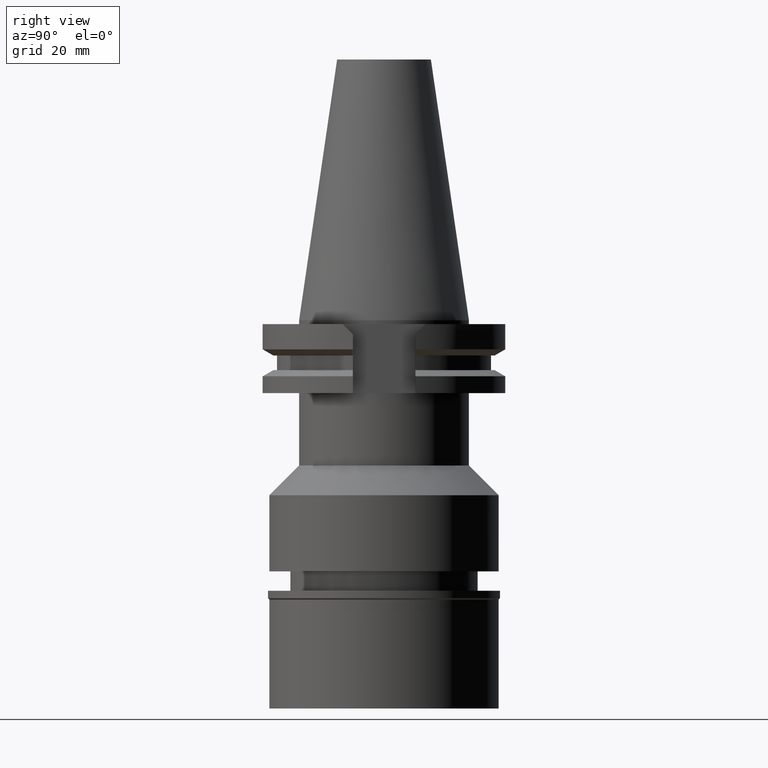
[diagram: clean part render]
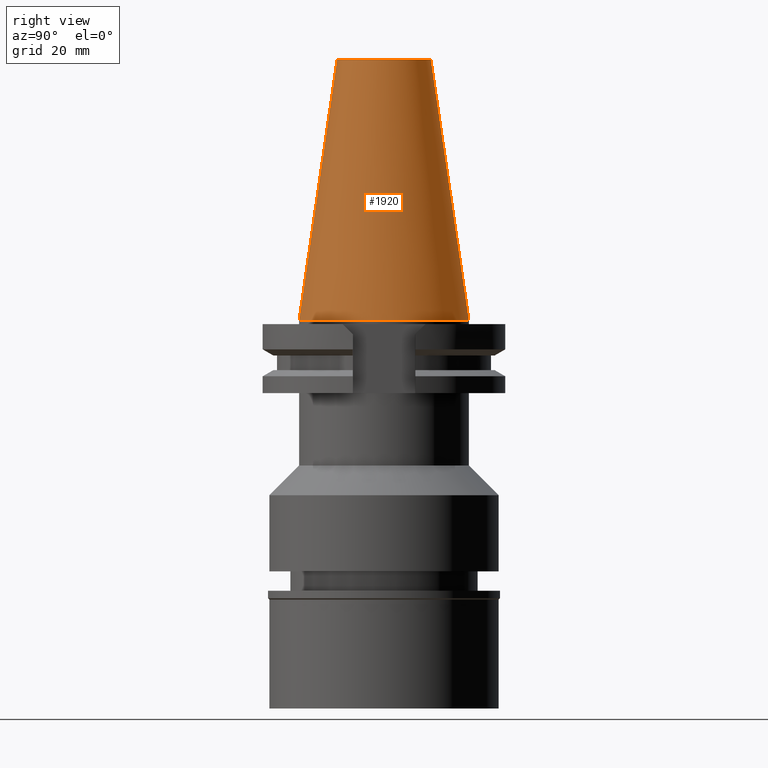
[diagram: same view with one face highlighted and labeled with its STEP entity id]
A machine part, right view. The second image highlights one B-rep face of the part: STEP entity #1920.
In plain terms, the highlighted conical surface has half-angle 8.297 deg.
Its self-contained STEP definition (entity closure, byte-faithful):
#9 = VECTOR ( 'NONE', #367, 1000.000000000000114 ) ;
#97 = CARTESIAN_POINT ( 'NONE',  ( 0.0000000000000000000, 1.642557519355999895E-14, -3.126388037344000570E-13 ) ) ;
#108 = DIRECTION ( 'NONE',  ( 0.0000000000000000000, 0.0000000000000000000, -1.000000000000000000 ) ) ;
#172 = EDGE_CURVE ( 'NONE', #491, #2077, #1219, .T. ) ;
#231 = EDGE_LOOP ( 'NONE', ( #385, #1467, #2932, #409 ) ) ;
#367 = DIRECTION ( 'NONE',  ( 0.0000000000000000000, 0.1443069799456937474, -0.9895329683941577192 ) ) ;
#385 = ORIENTED_EDGE ( 'NONE', *, *, #172, .T. ) ;
#409 = ORIENTED_EDGE ( 'NONE', *, *, #2936, .F. ) ;
#491 = VERTEX_POINT ( 'NONE', #845 ) ;
#493 = AXIS2_PLACEMENT_3D ( 'NONE', #97, #2582, #1334 ) ;
#548 = CARTESIAN_POINT ( 'NONE',  ( 0.0000000000000000000, -12.27186888070000137, 68.25000000000000000 ) ) ;
#582 = CIRCLE ( 'NONE', #493, 22.22500000000000142 ) ;
#845 = CARTESIAN_POINT ( 'NONE',  ( 0.0000000000000000000, 12.27186888070000137, 68.25000000000000000 ) ) ;
#870 = LINE ( 'NONE', #1781, #9 ) ;
#907 = DIRECTION ( 'NONE',  ( 0.0000000000000000000, 0.0000000000000000000, -1.000000000000000000 ) ) ;
#971 = VERTEX_POINT ( 'NONE', #2988 ) ;
#1075 = DIRECTION ( 'NONE',  ( 0.0000000000000000000, -1.000000000000000000, 0.0000000000000000000 ) ) ;
#1150 = CARTESIAN_POINT ( 'NONE',  ( 0.0000000000000000000, 1.642557519355999895E-14, 68.25000000000000000 ) ) ;
#1219 = CIRCLE ( 'NONE', #1633, 12.27186888070000137 ) ;
#1334 = DIRECTION ( 'NONE',  ( 0.0000000000000000000, 1.000000000000000000, 0.0000000000000000000 ) ) ;
#1366 = FACE_OUTER_BOUND ( 'NONE', #231, .T. ) ;
#1454 = CARTESIAN_POINT ( 'NONE',  ( 0.0000000000000000000, -12.27186888070000137, 68.25000000000000000 ) ) ;
#1467 = ORIENTED_EDGE ( 'NONE', *, *, #2764, .T. ) ;
#1633 = AXIS2_PLACEMENT_3D ( 'NONE', #1150, #907, #1655 ) ;
#1655 = DIRECTION ( 'NONE',  ( 0.0000000000000000000, 1.000000000000000000, 0.0000000000000000000 ) ) ;
#1756 = DIRECTION ( 'NONE',  ( 0.0000000000000000000, -0.1443069799456937474, -0.9895329683941577192 ) ) ;
#1759 = CARTESIAN_POINT ( 'NONE',  ( 0.0000000000000000000, 22.22500000000000142, -1.847411112975999717E-13 ) ) ;
#1781 = CARTESIAN_POINT ( 'NONE',  ( 0.0000000000000000000, 12.27186888070000137, 68.25000000000000000 ) ) ;
#1920 = ADVANCED_FACE ( 'NONE', ( #1366 ), #2618, .T. ) ;
#2077 = VERTEX_POINT ( 'NONE', #1454 ) ;
#2197 = VERTEX_POINT ( 'NONE', #1759 ) ;
#2313 = VECTOR ( 'NONE', #1756, 1000.000000000000114 ) ;
#2479 = LINE ( 'NONE', #548, #2313 ) ;
#2582 = DIRECTION ( 'NONE',  ( 0.0000000000000000000, 0.0000000000000000000, -1.000000000000000000 ) ) ;
#2618 = CONICAL_SURFACE ( 'NONE', #2623, 17.24843444035000317, 0.1448125860318199565 ) ;
#2623 = AXIS2_PLACEMENT_3D ( 'NONE', #3098, #108, #1075 ) ;
#2764 = EDGE_CURVE ( 'NONE', #2077, #971, #2479, .T. ) ;
#2932 = ORIENTED_EDGE ( 'NONE', *, *, #2950, .F. ) ;
#2936 = EDGE_CURVE ( 'NONE', #491, #2197, #870, .T. ) ;
#2950 = EDGE_CURVE ( 'NONE', #2197, #971, #582, .T. ) ;
#2988 = CARTESIAN_POINT ( 'NONE',  ( 0.0000000000000000000, -22.22500000000000142, -1.847411112975999717E-13 ) ) ;
#3098 = CARTESIAN_POINT ( 'NONE',  ( 0.0000000000000000000, 1.642557519355999895E-14, 34.12500000000000000 ) ) ;